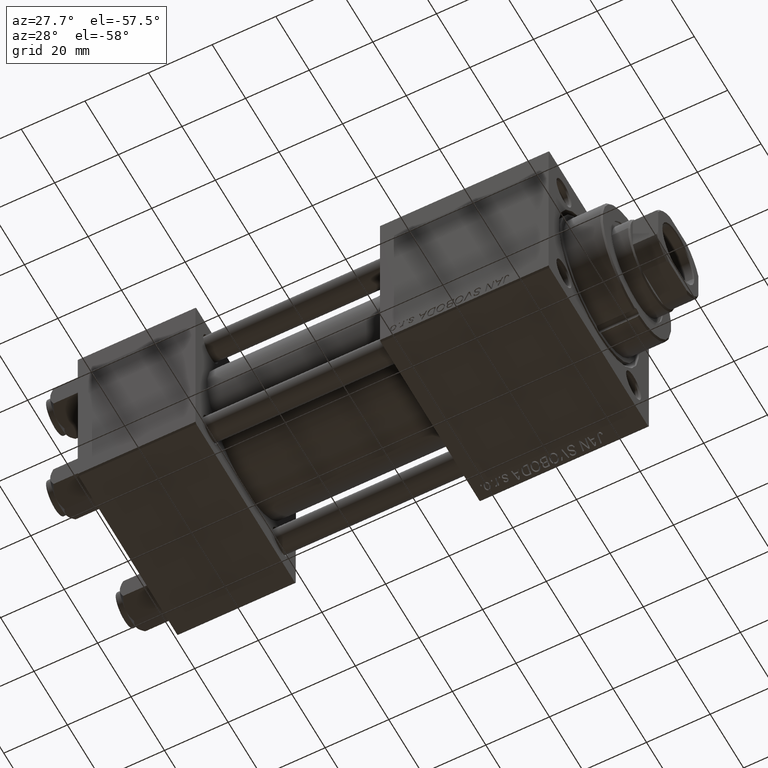
[diagram: clean part render]
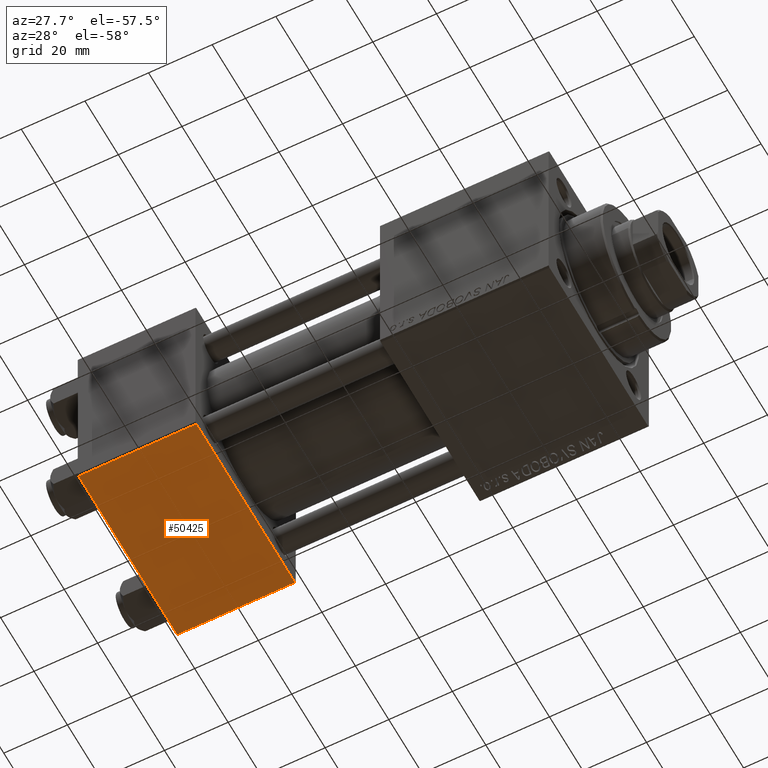
[diagram: same view with one face highlighted and labeled with its STEP entity id]
A machine part, auxiliary view. The second image highlights one B-rep face of the part: STEP entity #50425.
In plain terms, the highlighted planar face has unit normal (0, 0, -1).
Its self-contained STEP definition (entity closure, byte-faithful):
#1146 = LINE ( 'NONE', #12625, #36239 ) ;
#2143 = VERTEX_POINT ( 'NONE', #33283 ) ;
#3302 = VECTOR ( 'NONE', #10310, 1000.000000000000000 ) ;
#7745 = DIRECTION ( 'NONE',  ( -1.000000000000000000, 0.000000000000000000, 0.000000000000000000 ) ) ;
#9926 = AXIS2_PLACEMENT_3D ( 'NONE', #24935, #33596, #45322 ) ;
#10310 = DIRECTION ( 'NONE',  ( 0.000000000000000000, -1.000000000000000000, -1.156482317317871725E-16 ) ) ;
#11550 = LINE ( 'NONE', #47029, #12077 ) ;
#12077 = VECTOR ( 'NONE', #35547, 1000.000000000000000 ) ;
#12625 = CARTESIAN_POINT ( 'NONE',  ( 37.00000000000000000, 29.99999999999999289, -30.00000000000000000 ) ) ;
#13084 = VERTEX_POINT ( 'NONE', #44262 ) ;
#13755 = ORIENTED_EDGE ( 'NONE', *, *, #20049, .T. ) ;
#14183 = PLANE ( 'NONE',  #9926 ) ;
#16298 = EDGE_CURVE ( 'NONE', #13084, #2143, #1146, .T. ) ;
#17012 = ORIENTED_EDGE ( 'NONE', *, *, #16298, .T. ) ;
#18393 = CARTESIAN_POINT ( 'NONE',  ( 0.000000000000000000, -29.50000000000000000, -30.00000000000000711 ) ) ;
#20049 = EDGE_CURVE ( 'NONE', #2143, #49014, #22577, .T. ) ;
#20198 = EDGE_LOOP ( 'NONE', ( #33757, #24815, #17012, #13755 ) ) ;
#22577 = LINE ( 'NONE', #26674, #38796 ) ;
#24815 = ORIENTED_EDGE ( 'NONE', *, *, #35613, .T. ) ;
#24935 = CARTESIAN_POINT ( 'NONE',  ( 37.00000000000000000, 29.99999999999999289, -30.00000000000000000 ) ) ;
#25270 = CARTESIAN_POINT ( 'NONE',  ( 0.000000000000000000, 29.49999999999997868, -30.00000000000000000 ) ) ;
#26674 = CARTESIAN_POINT ( 'NONE',  ( 0.000000000000000000, -29.50000000000001066, -30.00000000000000711 ) ) ;
#31790 = DIRECTION ( 'NONE',  ( 0.000000000000000000, -1.000000000000000000, -1.156482317317871725E-16 ) ) ;
#33283 = CARTESIAN_POINT ( 'NONE',  ( 37.00000000000000000, -29.50000000000000000, -30.00000000000000711 ) ) ;
#33596 = DIRECTION ( 'NONE',  ( 0.000000000000000000, 1.156482317317871725E-16, -1.000000000000000000 ) ) ;
#33757 = ORIENTED_EDGE ( 'NONE', *, *, #45164, .F. ) ;
#35547 = DIRECTION ( 'NONE',  ( 1.000000000000000000, 0.000000000000000000, 0.000000000000000000 ) ) ;
#35613 = EDGE_CURVE ( 'NONE', #43491, #13084, #11550, .T. ) ;
#36239 = VECTOR ( 'NONE', #31790, 1000.000000000000000 ) ;
#38796 = VECTOR ( 'NONE', #7745, 1000.000000000000000 ) ;
#42462 = LINE ( 'NONE', #45285, #3302 ) ;
#43491 = VERTEX_POINT ( 'NONE', #25270 ) ;
#44262 = CARTESIAN_POINT ( 'NONE',  ( 37.00000000000000000, 29.49999999999997868, -30.00000000000000000 ) ) ;
#45071 = FACE_OUTER_BOUND ( 'NONE', #20198, .T. ) ;
#45164 = EDGE_CURVE ( 'NONE', #43491, #49014, #42462, .T. ) ;
#45285 = CARTESIAN_POINT ( 'NONE',  ( 0.000000000000000000, 29.99999999999999289, -30.00000000000000000 ) ) ;
#45322 = DIRECTION ( 'NONE',  ( 0.000000000000000000, 1.000000000000000000, 1.156482317317871725E-16 ) ) ;
#47029 = CARTESIAN_POINT ( 'NONE',  ( 37.00000000000000000, 29.49999999999997868, -30.00000000000000000 ) ) ;
#49014 = VERTEX_POINT ( 'NONE', #18393 ) ;
#50425 = ADVANCED_FACE ( 'NONE', ( #45071 ), #14183, .T. ) ;